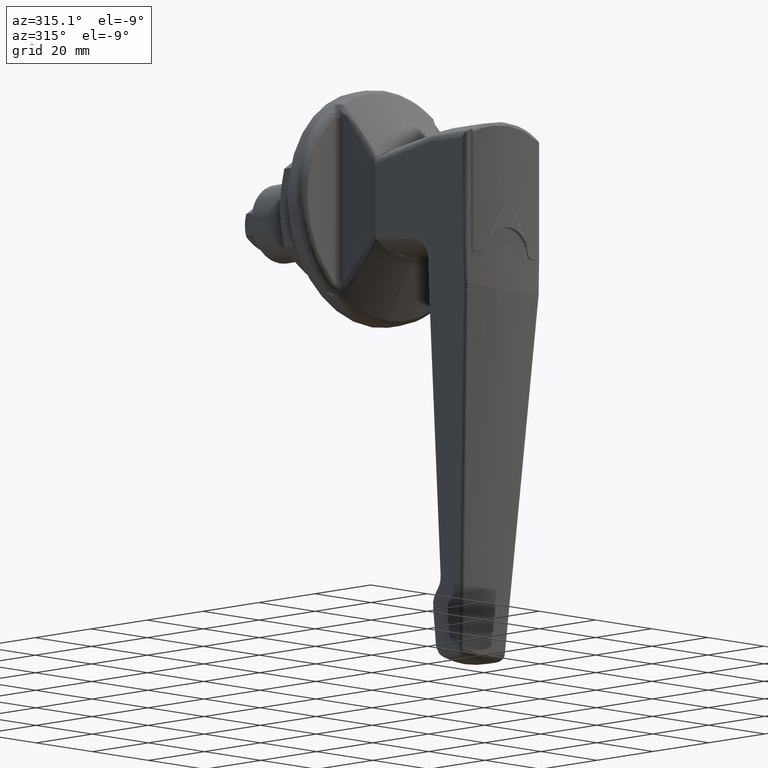
[diagram: clean part render]
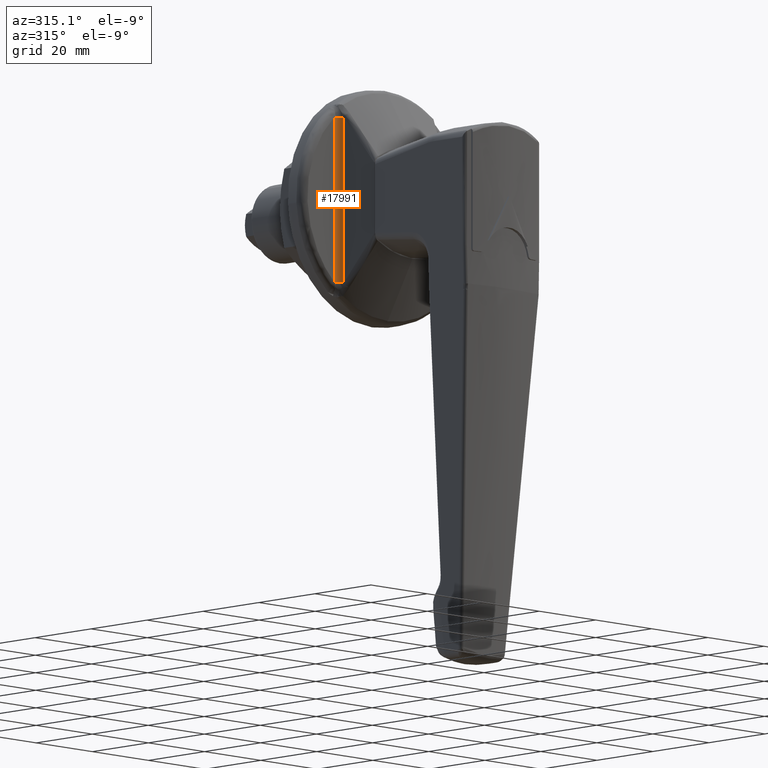
[diagram: same view with one face highlighted and labeled with its STEP entity id]
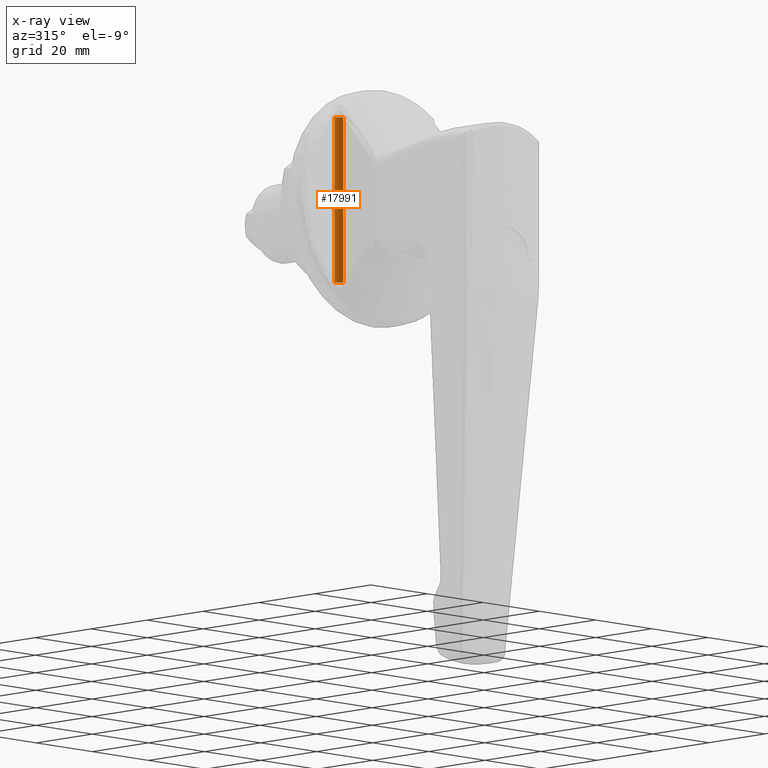
[diagram: x-ray of the same camera — body ghosted, the highlighted face saturated]
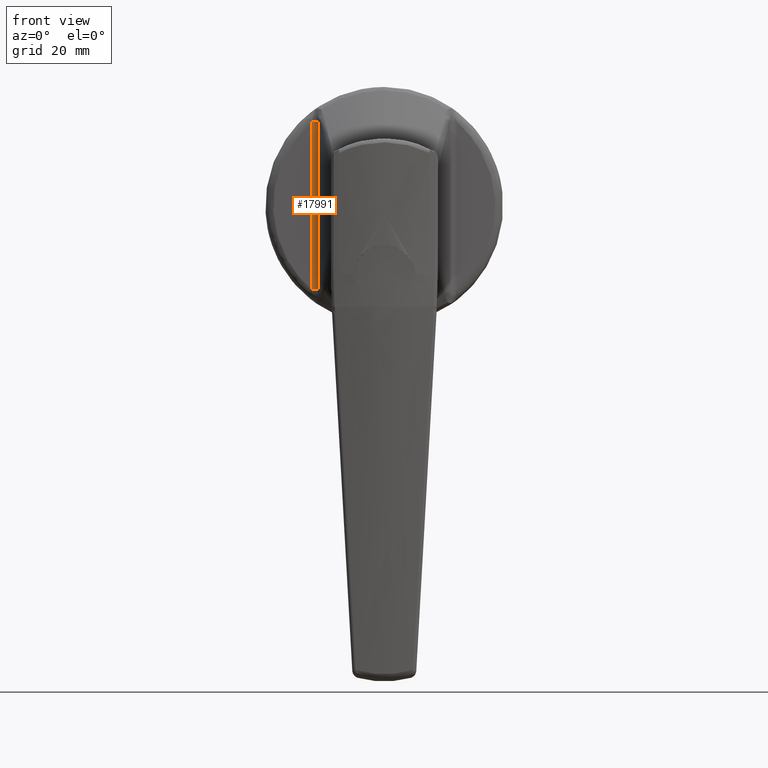
[diagram: same view with one face highlighted and labeled with its STEP entity id]
A machine part, auxiliary view. The second image highlights one B-rep face of the part: STEP entity #17991.
The next image is the same camera in x-ray: the body ghosted, the highlighted face saturated — about 0% of this face is hidden behind the body in this view.
A second angle (front view) of the same face is appended — the face is thin or edge-on in the first view.
In plain terms, the highlighted face is a freeform B-spline surface patch.
Its self-contained STEP definition (entity closure, byte-faithful):
#17878=CARTESIAN_POINT('',(-4.999999999999890,18.363324249961149,21.137367917760901));
#17879=VERTEX_POINT('',#17878);
#17921=CARTESIAN_POINT('',(-6.268996820389060,16.501702819218899,21.137367917760901));
#17922=VERTEX_POINT('',#17921);
#17923=CARTESIAN_POINT('',(-4.999999999999890,18.363324249961149,21.137367917760901));
#17924=CARTESIAN_POINT('',(-4.999999999999889,16.999999999999975,21.137367917760898));
#17925=CARTESIAN_POINT('',(-6.268996820389056,16.501702819218892,21.137367917760901));
#17933=(BOUNDED_CURVE()B_SPLINE_CURVE(2,(#17923,#17924,#17925),.UNSPECIFIED.,.F.,.U.)CURVE()GEOMETRIC_REPRESENTATION_ITEM()QUASI_UNIFORM_CURVE()RATIONAL_B_SPLINE_CURVE((1.0,0.826287356131454,1.0))REPRESENTATION_ITEM(''));
#17934=EDGE_CURVE('',#17879,#17922,#17933,.T.);
#17947=CARTESIAN_POINT('',(-6.317978884882868,16.483205317942609,22.194236313648950));
#17948=CARTESIAN_POINT('',(-6.317978884882868,16.483205317942609,-22.220658023546140));
#17949=CARTESIAN_POINT('',(-4.926764058765014,16.987874395476730,22.194236313648947));
#17950=CARTESIAN_POINT('',(-4.926764058765014,16.987874395476730,-22.220658023546143));
#17951=CARTESIAN_POINT('',(-5.002629647450750,18.465850708779019,22.194236313648950));
#17952=CARTESIAN_POINT('',(-5.002629647450750,18.465850708779019,-22.220658023546140));
#17960=(BOUNDED_SURFACE()B_SPLINE_SURFACE(1,2,((#17947,#17949,#17951),(#17948,#17950,#17952)),.UNSPECIFIED.,.F.,.F.,.U.)B_SPLINE_SURFACE_WITH_KNOTS((2,2),(3,3),(0.0,44.414894337195093),(0.0,2.638004377122539),.UNSPECIFIED.)GEOMETRIC_REPRESENTATION_ITEM()RATIONAL_B_SPLINE_SURFACE(((1.0,0.803856860617217,1.0),(1.0,0.803856860617217,1.0)))REPRESENTATION_ITEM('')SURFACE());
#17961=CARTESIAN_POINT('',(-4.999999999999890,18.363324249961149,-21.137367917760901));
#17962=VERTEX_POINT('',#17961);
#17963=CARTESIAN_POINT('',(-6.268996820389060,16.501702819218899,-21.137367917760901));
#17964=VERTEX_POINT('',#17963);
#17965=CARTESIAN_POINT('',(-4.999999999999890,18.363324249961149,-21.137367917760901));
#17966=CARTESIAN_POINT('',(-4.999999999999889,16.999999999999975,-21.137367917760898));
#17967=CARTESIAN_POINT('',(-6.268996820389056,16.501702819218892,-21.137367917760901));
#17975=(BOUNDED_CURVE()B_SPLINE_CURVE(2,(#17965,#17966,#17967),.UNSPECIFIED.,.F.,.U.)CURVE()GEOMETRIC_REPRESENTATION_ITEM()QUASI_UNIFORM_CURVE()RATIONAL_B_SPLINE_CURVE((1.0,0.826287356131454,1.0))REPRESENTATION_ITEM(''));
#17976=EDGE_CURVE('',#17962,#17964,#17975,.T.);
#17977=ORIENTED_EDGE('',*,*,#17976,.T.);
#17978=CARTESIAN_POINT('',(-6.268996820389060,16.501702819218899,21.137367917760901));
#17979=CARTESIAN_POINT('',(-6.268996820389060,16.501702819218899,-21.137367917760901));
#17980=QUASI_UNIFORM_CURVE('',1,(#17978,#17979),.UNSPECIFIED.,.F.,.U.);
#17981=EDGE_CURVE('',#17922,#17964,#17980,.T.);
#17982=ORIENTED_EDGE('',*,*,#17981,.F.);
#17983=ORIENTED_EDGE('',*,*,#17934,.F.);
#17984=CARTESIAN_POINT('',(-4.999999999999890,18.363324249961149,-21.137367917760901));
#17985=CARTESIAN_POINT('',(-4.999999999999890,18.363324249961149,21.137367917760901));
#17986=QUASI_UNIFORM_CURVE('',1,(#17984,#17985),.UNSPECIFIED.,.F.,.U.);
#17987=EDGE_CURVE('',#17962,#17879,#17986,.T.);
#17988=ORIENTED_EDGE('',*,*,#17987,.F.);
#17989=EDGE_LOOP('',(#17977,#17982,#17983,#17988));
#17990=FACE_OUTER_BOUND('',#17989,.T.);
#17991=ADVANCED_FACE('',(#17990),#17960,.F.);